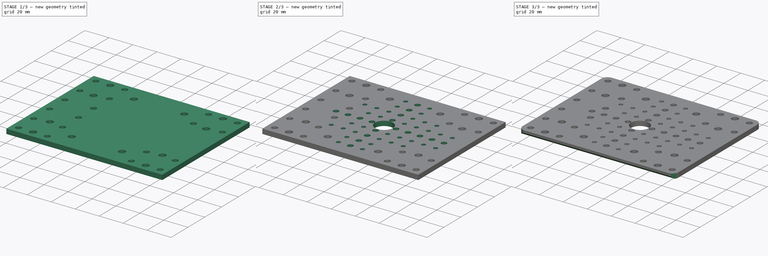
[diagram: build sequence overview — one tinted view per stage of 3, left to right]
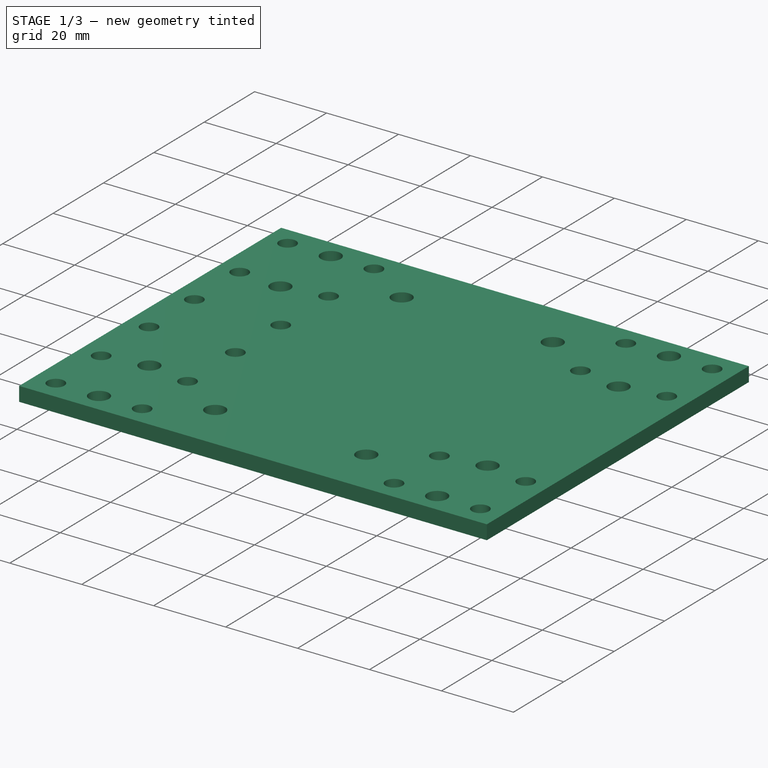
[diagram: stage 1 of 3 — iso view after this stage's code; geometry added in this stage tinted green]
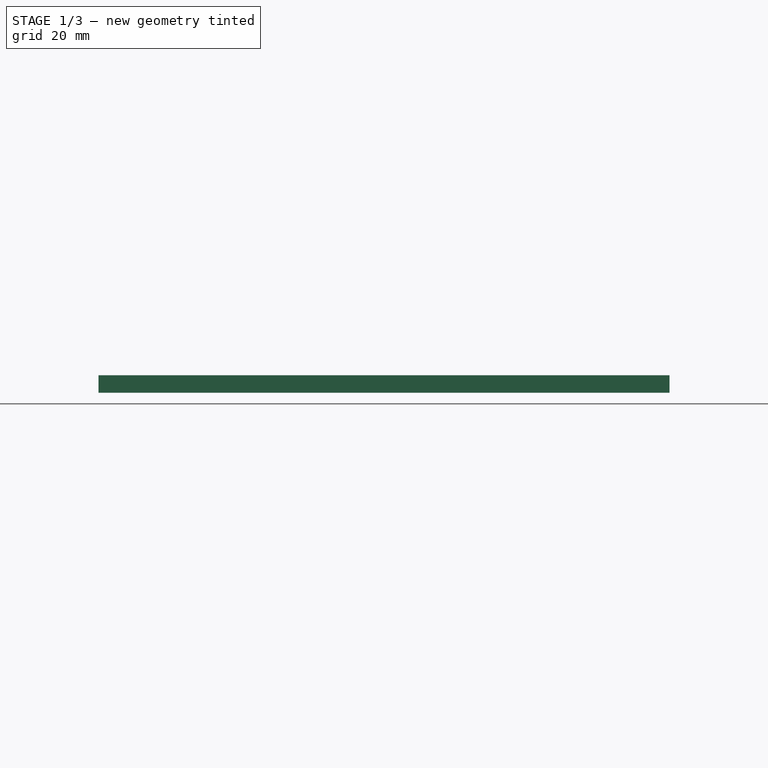
[diagram: stage 1 of 3 — front view after this stage's code; geometry added in this stage tinted green]
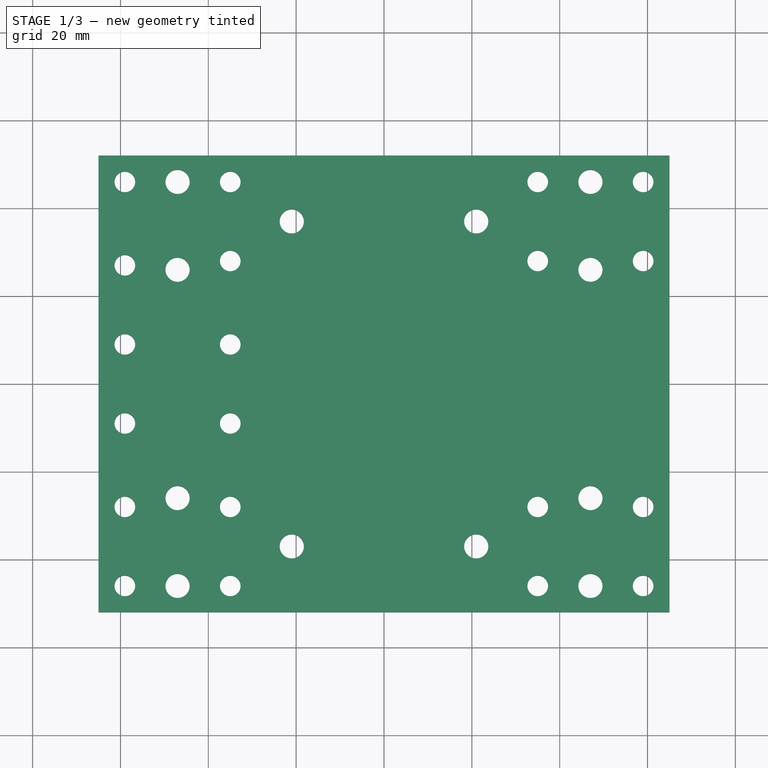
[diagram: stage 1 of 3 — top view after this stage's code; geometry added in this stage tinted green]
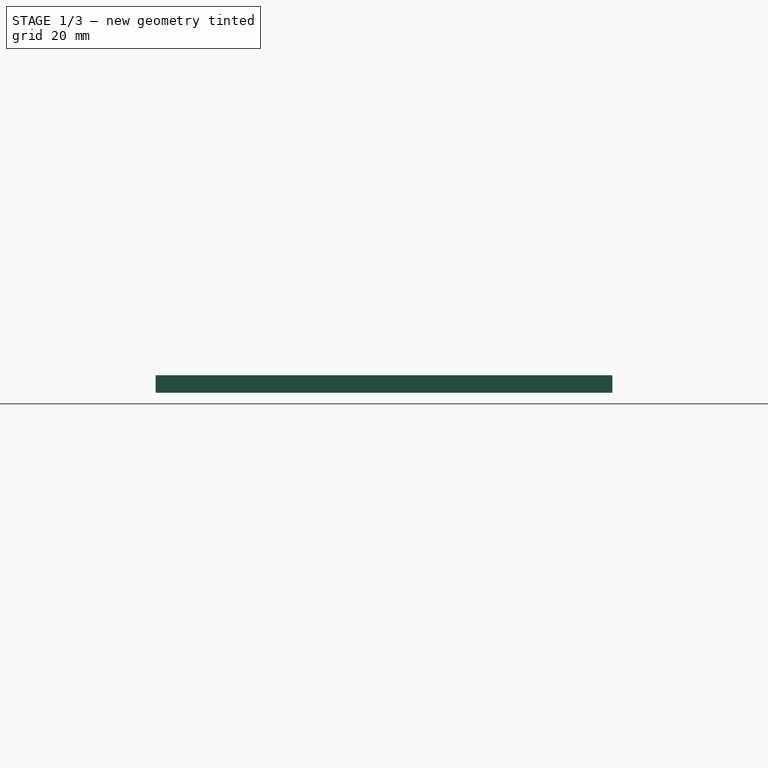
[diagram: stage 1 of 3 — right view after this stage's code; geometry added in this stage tinted green]
FCSTD DOCUMENT  (FreeCAD 0.16R6707 (Git))
Label: spindle top plate 2
License: All rights reserved
LicenseURL: http://en.wikipedia.org/wiki/All_rights_reserved
objects: Sketcher::SketchObject×3, PartDesign::Pocket×2, PartDesign::Pad×1, PartDesign::Chamfer×1, PartDesign::Fillet×1
note: 11 computed .brp shape members not serialized (recipe doc carries the construction recipe); baked Part::Feature solids carry a one-line shape summary decoded from their .brp

FEATURE [Sketcher::SketchObject] Sketch  label="overall"
  sketch-geometry (4):
    g0: LineSegment StartX=-65 StartY=52 StartZ=0 EndX=65 EndY=52 EndZ=0
    g1: LineSegment StartX=65 StartY=52 StartZ=0 EndX=65 EndY=-52 EndZ=0
    g2: LineSegment StartX=65 StartY=-52 StartZ=0 EndX=-65 EndY=-52 EndZ=0
    g3: LineSegment StartX=-65 StartY=-52 StartZ=0 EndX=-65 EndY=52 EndZ=0
  constraints (12):
    c: Coincident(g0,g1)
    c: Coincident(g1,g2)
    c: Coincident(g2,g3)
    c: Coincident(g3,g0)
    c: Horizontal(g0)
    c: Horizontal(g2)
    c: Vertical(g1)
    c: Vertical(g3)
    c: Symmetric(g0,g0,g-2)
    c: Symmetric(g0,g2,g-1)
    c: DistanceY(g3,g3) = 104
    c: DistanceX(g0,g0) = 130
FEATURE [PartDesign::Pad] Pad
  Length = 4
  Length2 = 100
  Sketch = -> Sketch
  Type = 0
FEATURE [Sketcher::SketchObject] Sketch001  label="support holes"
  Placement = pos=(0,0,4) rot=(0,0,1;0rad)
  Support = -> Pad [Face6]
  sketch-geometry (48):
    g0: LineSegment [constr] StartX=-59 StartY=46 StartZ=0 EndX=59 EndY=46 EndZ=0
    g1: LineSegment [constr] StartX=59 StartY=46 StartZ=0 EndX=59 EndY=-46 EndZ=0
    g2: LineSegment [constr] StartX=59 StartY=-46 StartZ=0 EndX=-59 EndY=-46 EndZ=0
    g3: LineSegment [constr] StartX=-59 StartY=-46 StartZ=0 EndX=-59 EndY=46 EndZ=0
    g4: LineSegment [constr] StartX=-35 StartY=28 StartZ=0 EndX=35 EndY=28 EndZ=0
    g5: LineSegment [constr] StartX=35 StartY=28 StartZ=0 EndX=35 EndY=-28 EndZ=0
    g6: LineSegment [constr] StartX=35 StartY=-28 StartZ=0 EndX=-35 EndY=-28 EndZ=0
    g7: LineSegment [constr] StartX=-35 StartY=-28 StartZ=0 EndX=-35 EndY=28 EndZ=0
    g8: Circle CenterX=-35 CenterY=46 CenterZ=0 NormalX=0 NormalY=0 NormalZ=1 Radius=2.35
    g9: Circle CenterX=-59 CenterY=27 CenterZ=0 NormalX=0 NormalY=0 NormalZ=1 Radius=2.35
    g10: Circle CenterX=-59 CenterY=46 CenterZ=0 NormalX=0 NormalY=0 NormalZ=1 Radius=2.35
    g11: Circle CenterX=35 CenterY=46 CenterZ=0 NormalX=0 NormalY=0 NormalZ=1 Radius=2.35
    g12: Circle CenterX=59 CenterY=28 CenterZ=0 NormalX=0 NormalY=0 NormalZ=1 Radius=2.35
    g13: Circle CenterX=59 CenterY=46 CenterZ=0 NormalX=0 NormalY=0 NormalZ=1 Radius=2.35
    g14: Circle CenterX=59 CenterY=-28 CenterZ=0 NormalX=0 NormalY=0 NormalZ=1 Radius=2.35
    g15: Circle CenterX=59 CenterY=-46 CenterZ=0 NormalX=0 NormalY=0 NormalZ=1 Radius=2.35
    g16: Circle CenterX=35 CenterY=-46 CenterZ=0 NormalX=0 NormalY=0 NormalZ=1 Radius=2.35
    g17: Circle CenterX=-59 CenterY=-28 CenterZ=0 NormalX=0 NormalY=0 NormalZ=1 Radius=2.35
    g18: Circle CenterX=-35 CenterY=-46 CenterZ=0 NormalX=0 NormalY=0 NormalZ=1 Radius=2.35
    g19: Circle CenterX=-59 CenterY=-46 CenterZ=0 NormalX=0 NormalY=0 NormalZ=1 Radius=2.35
    g20: LineSegment [constr] StartX=-47 StartY=63.724 StartZ=0 EndX=-47 EndY=-60.0684 EndZ=0
    g21: LineSegment [constr] StartX=47 StartY=59.8365 StartZ=0 EndX=47 EndY=-50.1635 EndZ=0
    g22: Circle CenterX=-47 CenterY=46 CenterZ=0 NormalX=0 NormalY=0 NormalZ=1 Radius=2.75
    g23: Circle CenterX=-47 CenterY=26 CenterZ=0 NormalX=0 NormalY=0 NormalZ=1 Radius=2.75
    g24: Circle CenterX=47 CenterY=46 CenterZ=0 NormalX=0 NormalY=0 NormalZ=1 Radius=2.75
    g25: Circle CenterX=47 CenterY=26 CenterZ=0 NormalX=0 NormalY=0 NormalZ=1 Radius=2.75
    g26: Circle CenterX=-21 CenterY=-37 CenterZ=0 NormalX=0 NormalY=0 NormalZ=1 Radius=2.75
    g27: Circle CenterX=21 CenterY=-37 CenterZ=0 NormalX=0 NormalY=0 NormalZ=1 Radius=2.75
    g28: LineSegment [constr] StartX=-60 StartY=37 StartZ=0 EndX=59.9989 EndY=37 EndZ=0
    g29: Circle CenterX=-21 CenterY=37 CenterZ=0 NormalX=0 NormalY=0 NormalZ=1 Radius=2.75
    g30: Circle CenterX=21 CenterY=37 CenterZ=0 NormalX=0 NormalY=0 NormalZ=1 Radius=2.75
    g31: Circle CenterX=47 CenterY=-46 CenterZ=0 NormalX=0 NormalY=0 NormalZ=1 Radius=2.75
    g32: Circle CenterX=47 CenterY=-26 CenterZ=0 NormalX=0 NormalY=0 NormalZ=1 Radius=2.75
    g33: Circle CenterX=-47 CenterY=-26 CenterZ=0 NormalX=0 NormalY=0 NormalZ=1 Radius=2.75
    g34: Circle CenterX=-47 CenterY=-46 CenterZ=0 NormalX=0 NormalY=0 NormalZ=1 Radius=2.75
    g35: LineSegment [constr] StartX=-56.1432 StartY=-37 StartZ=0 EndX=70 EndY=-37 EndZ=0
    g36: Circle CenterX=-35 CenterY=28 CenterZ=0 NormalX=0 NormalY=0 NormalZ=1 Radius=2.35
    g37: Circle CenterX=35 CenterY=28 CenterZ=0 NormalX=0 NormalY=0 NormalZ=1 Radius=2.35
    g38: Circle CenterX=35 CenterY=-28 CenterZ=0 NormalX=0 NormalY=0 NormalZ=1 Radius=2.35
    g39: Circle CenterX=-35 CenterY=-28 CenterZ=0 NormalX=0 NormalY=0 NormalZ=1 Radius=2.35
    g40: LineSegment [constr] StartX=30 StartY=56 StartZ=0 EndX=65.7035 EndY=56 EndZ=0
    g41: LineSegment [constr] StartX=30 StartY=-56 StartZ=0 EndX=64.5588 EndY=-56 EndZ=0
    g42: LineSegment [constr] StartX=-64.62 StartY=19 StartZ=0 EndX=94.658 EndY=19 EndZ=0
    g43: Circle CenterX=-59 CenterY=9 CenterZ=0 NormalX=0 NormalY=0 NormalZ=1 Radius=2.35
    g44: Circle CenterX=-59 CenterY=-9 CenterZ=0 NormalX=0 NormalY=0 NormalZ=1 Radius=2.35
    g45: Circle CenterX=-35 CenterY=9 CenterZ=0 NormalX=0 NormalY=0 NormalZ=1 Radius=2.35
    g46: Circle CenterX=-35 CenterY=-9 CenterZ=0 NormalX=0 NormalY=0 NormalZ=1 Radius=2.35
    g47: LineSegment [constr] StartX=-80 StartY=52 StartZ=0 EndX=-25.8285 EndY=52 EndZ=0
  constraints (121):
    c: Coincident(g0,g1)
    c: Coincident(g1,g2)
    c: Coincident(g2,g3)
    c: Coincident(g3,g0)
    c: Horizontal(g2)
    c: Vertical(g1)
    c: Symmetric(g0,g0,g-2)
    c: Symmetric(g0,g2,g-1)
    c: Symmetric(g4,g4,g-2)
    c: Symmetric(g5,g4,g-1)
    c: DistanceX(g4,g0) = 24
    c: Vertical(g5)
    c: Vertical(g7)
    c: Horizontal(g6)
    c: DistanceY(g4,g0) = 18
    c: Coincident(g4,g7)
    c: Coincident(g5,g6)
    c: Coincident(g6,g7)
    c: Coincident(g4,g5)
    c: Symmetric(g29,g30,g-2)
    c: Symmetric(g26,g27,g-2)
    c: DistanceX(g29,g30) = 42
    c: DistanceX(g26,g27) = 42
    c: DistanceX(g30,g4) = 14
    c: DistanceX(g21,g0) = 12
    c: Vertical(g21)
    c: DistanceX(g0,g20) = 12
    c: Vertical(g20)
    c: Coincident(g10,g0)
    c: PointOnObject(g9,g3)
    c: DistanceY(g28,g0) = 9
    c: DistanceY(g2,g35) = 9
    c: Coincident(g19,g2)
    c: Coincident(g15,g1)
    c: Coincident(g13,g0)
    c: PointOnObject(g34,g2)
    c: PointOnObject(g34,g20)
    c: PointOnObject(g22,g20)
    c: PointOnObject(g22,g0)
    c: PointOnObject(g24,g0)
    c: PointOnObject(g24,g21)
    c: PointOnObject(g31,g2)
    c: PointOnObject(g31,g21)
    c: PointOnObject(g12,g4)
    c: PointOnObject(g12,g1)
    c: PointOnObject(g17,g6)
    c: PointOnObject(g17,g3)
    c: PointOnObject(g14,g6)
    c: PointOnObject(g14,g1)
    c: PointOnObject(g11,g5)
    c: PointOnObject(g11,g0)
    c: PointOnObject(g8,g0)
    c: PointOnObject(g8,g7)
    c: PointOnObject(g18,g2)
    c: PointOnObject(g18,g7)
    c: PointOnObject(g16,g5)
    c: PointOnObject(g16,g2)
    c: PointOnObject(g33,g20)
    c: DistanceY(g34,g33) = 20
    c: PointOnObject(g32,g21)
    c: DistanceY(g31,g32) = 20
    c: PointOnObject(g25,g21)
    c: DistanceY(g25,g24) = 20
    c: PointOnObject(g23,g20)
    c: DistanceY(g23,g22) = 20
    c: Equal(g26,g29)
    c: Equal(g29,g30)
    c: Equal(g30,g27)
    c: Radius(g29) = 2.75
    c: Coincident(g36,g4)
    c: Coincident(g37,g4)
    c: Coincident(g38,g5)
    c: Coincident(g39,g6)
    c: Equal(g10,g8)
    c: Equal(g8,g36)
    c: Equal(g36,g9)
    c: Equal(g9,g17)
    c: Equal(g17,g39)
    c: Equal(g39,g18)
    c: Equal(g18,g19)
    c: Equal(g19,g11)
    c: Equal(g11,g13)
    c: Equal(g13,g37)
    c: Equal(g37,g12)
    c: Equal(g12,g14)
    c: Equal(g14,g38)
    c: Equal(g38,g16)
    c: Equal(g16,g15)
    c: Radius(g36) = 2.35
    c: Equal(g22,g23)
    c: Equal(g23,g33)
    c: Equal(g33,g34)
    c: Equal(g34,g24)
    c: Equal(g24,g25)
    c: Equal(g25,g32)
    c: Equal(g32,g31)
    c: Radius(g23) = 2.75
    c: Horizontal(g40)
    c: Horizontal(g41)
    c: DistanceY(g41,g31) = 10
    c: Horizontal(g28)
    c: Horizontal(g35)
    c: DistanceY(g24,g40) = 10
    c: PointOnObject(g29,g28)
    c: PointOnObject(g26,g35)
    c: DistanceY(g-1,g12) = 28
    c: Horizontal(g42)
    c: DistanceY(g41,g42) = 75
    c: Equal(g43,g45)
    c: Equal(g45,g46)
    c: Equal(g46,g44)
    c: Radius(g43) = 2.35
    c: PointOnObject(g43,g3)
    c: PointOnObject(g44,g3)
    c: PointOnObject(g46,g7)
    c: Symmetric(g43,g44,g-1)
    c: DistanceY(g44,g43) = 18
    c: Symmetric(g46,g45,g-1)
    c: DistanceY(g46,g45) = 18
    c: Horizontal(g47)
    c: DistanceY(g8,g47) = 6
FEATURE [PartDesign::Pocket] Pocket
  Length = 5
  Sketch = -> Sketch001
  Type = 1
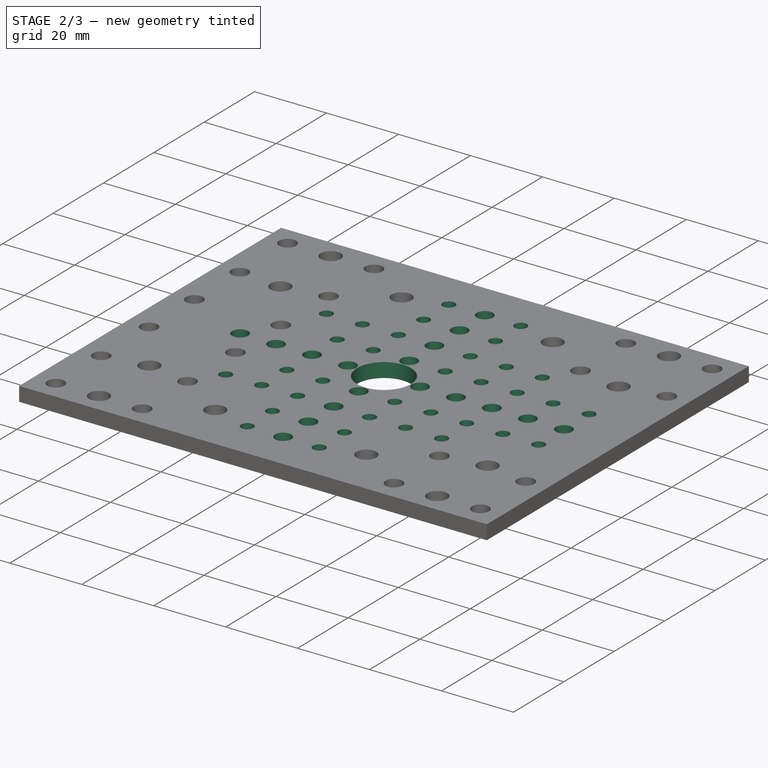
[diagram: stage 2 of 3 — iso view after this stage's code; geometry added in this stage tinted green]
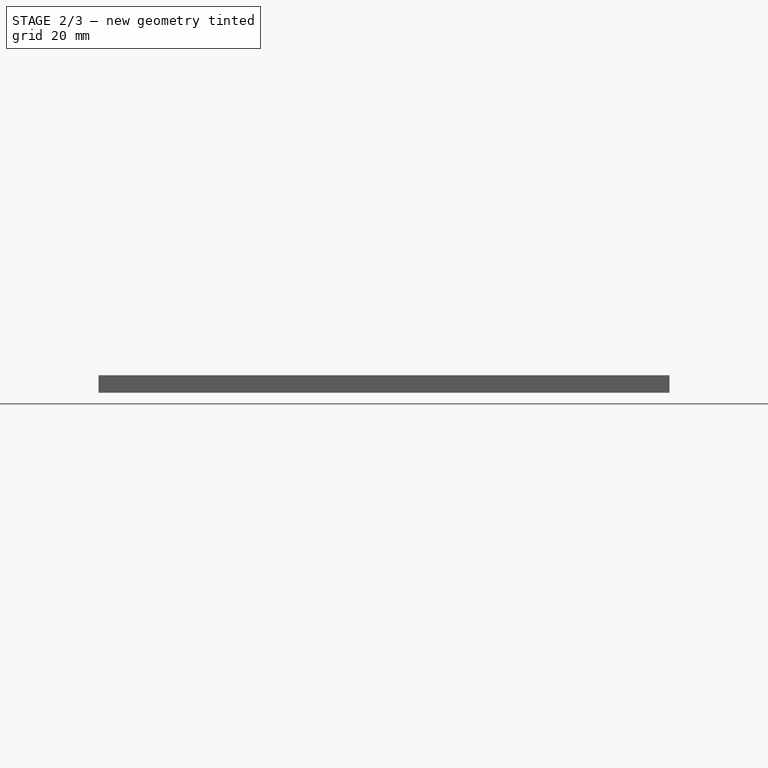
[diagram: stage 2 of 3 — front view after this stage's code; geometry added in this stage tinted green]
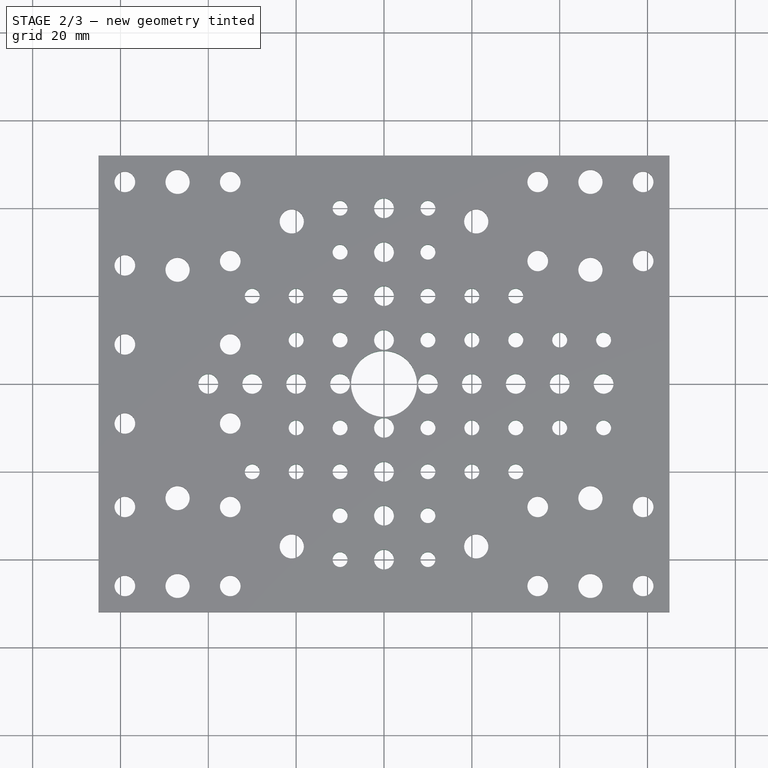
[diagram: stage 2 of 3 — top view after this stage's code; geometry added in this stage tinted green]
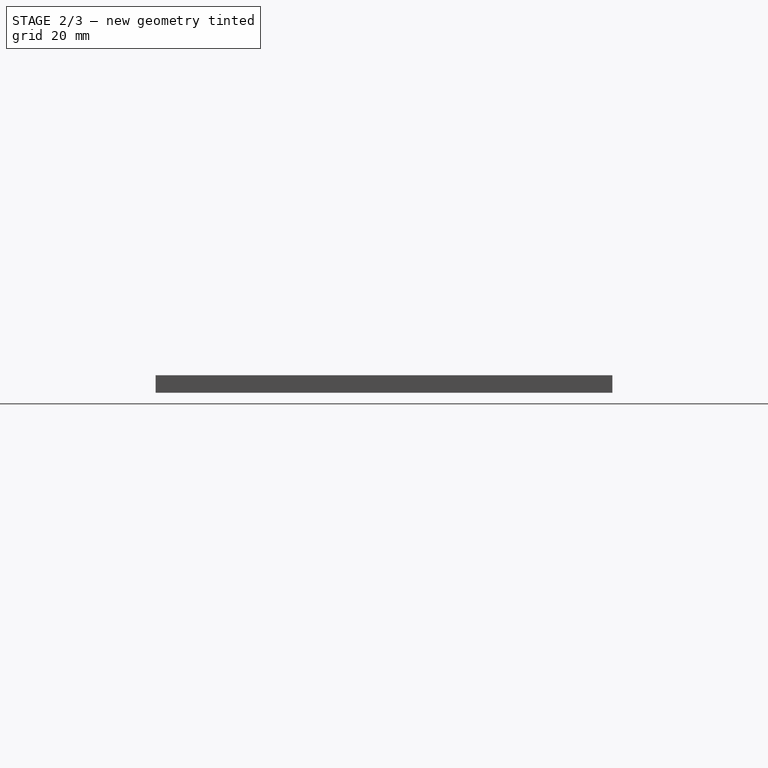
[diagram: stage 2 of 3 — right view after this stage's code; geometry added in this stage tinted green]
FEATURE [Sketcher::SketchObject] Sketch002  label="fill holes"
  Placement = pos=(0,0,4) rot=(0,0,1;0rad)
  Support = -> Pocket [Face5]
  sketch-geometry (52):
    g0: Circle CenterX=-10 CenterY=10 CenterZ=0 NormalX=0 NormalY=0 NormalZ=1 Radius=1.7
    g1: Circle CenterX=-20 CenterY=10 CenterZ=0 NormalX=0 NormalY=0 NormalZ=1 Radius=1.7
    g2: Circle CenterX=-10 CenterY=0 CenterZ=0 NormalX=0 NormalY=0 NormalZ=1 Radius=2.25
    g3: Circle CenterX=-20 CenterY=0 CenterZ=0 NormalX=0 NormalY=0 NormalZ=1 Radius=2.25
    g4: Circle CenterX=-10 CenterY=-10 CenterZ=0 NormalX=0 NormalY=0 NormalZ=1 Radius=1.7
    g5: Circle CenterX=-20 CenterY=-10 CenterZ=0 NormalX=0 NormalY=0 NormalZ=1 Radius=1.7
    g6: Circle CenterX=-30 CenterY=0 CenterZ=0 NormalX=0 NormalY=0 NormalZ=1 Radius=2.25
    g7: Circle CenterX=-40 CenterY=0 CenterZ=0 NormalX=0 NormalY=0 NormalZ=1 Radius=2.25
    g8: Circle CenterX=10 CenterY=10 CenterZ=0 NormalX=0 NormalY=0 NormalZ=1 Radius=1.7
    g9: Circle CenterX=10 CenterY=-10 CenterZ=0 NormalX=0 NormalY=0 NormalZ=1 Radius=1.7
    g10: Circle CenterX=20 CenterY=-10 CenterZ=0 NormalX=0 NormalY=0 NormalZ=1 Radius=1.7
    g11: Circle CenterX=20 CenterY=10 CenterZ=0 NormalX=0 NormalY=0 NormalZ=1 Radius=1.7
    g12: Circle CenterX=30 CenterY=10 CenterZ=0 NormalX=0 NormalY=0 NormalZ=1 Radius=1.7
    g13: Circle CenterX=40 CenterY=10 CenterZ=0 NormalX=0 NormalY=0 NormalZ=1 Radius=1.7
    g14: Circle CenterX=30 CenterY=-10 CenterZ=0 NormalX=0 NormalY=0 NormalZ=1 Radius=1.7
    g15: Circle CenterX=40 CenterY=-10 CenterZ=0 NormalX=0 NormalY=0 NormalZ=1 Radius=1.7
    g16: Circle CenterX=-10 CenterY=20 CenterZ=0 NormalX=0 NormalY=0 NormalZ=1 Radius=1.7
    g17: Circle CenterX=-20 CenterY=20 CenterZ=0 NormalX=0 NormalY=0 NormalZ=1 Radius=1.7
    g18: Circle CenterX=10 CenterY=20 CenterZ=0 NormalX=0 NormalY=0 NormalZ=1 Radius=1.7
    g19: Circle CenterX=20 CenterY=20 CenterZ=0 NormalX=0 NormalY=0 NormalZ=1 Radius=1.7
    g20: Circle CenterX=20 CenterY=-20 CenterZ=0 NormalX=0 NormalY=0 NormalZ=1 Radius=1.7
    g21: Circle CenterX=10 CenterY=-20 CenterZ=0 NormalX=0 NormalY=0 NormalZ=1 Radius=1.7
    g22: Circle CenterX=-10 CenterY=-20 CenterZ=0 NormalX=0 NormalY=0 NormalZ=1 Radius=1.7
    g23: Circle CenterX=-20 CenterY=-20 CenterZ=0 NormalX=0 NormalY=0 NormalZ=1 Radius=1.7
    g24: Circle CenterX=-10 CenterY=30 CenterZ=0 NormalX=0 NormalY=0 NormalZ=1 Radius=1.7
    g25: Circle CenterX=-10 CenterY=40 CenterZ=0 NormalX=0 NormalY=0 NormalZ=1 Radius=1.7
    g26: Circle CenterX=10 CenterY=40 CenterZ=0 NormalX=0 NormalY=0 NormalZ=1 Radius=1.7
    g27: Circle CenterX=10 CenterY=30 CenterZ=0 NormalX=0 NormalY=0 NormalZ=1 Radius=1.7
    g28: Circle CenterX=10 CenterY=-30 CenterZ=0 NormalX=0 NormalY=0 NormalZ=1 Radius=1.7
    g29: Circle CenterX=-10 CenterY=-30 CenterZ=0 NormalX=0 NormalY=0 NormalZ=1 Radius=1.7
    g30: Circle CenterX=-10 CenterY=-40 CenterZ=0 NormalX=0 NormalY=0 NormalZ=1 Radius=1.7
    g31: Circle CenterX=10 CenterY=-40 CenterZ=0 NormalX=0 NormalY=0 NormalZ=1 Radius=1.7
    g32: Circle CenterX=0 CenterY=40 CenterZ=0 NormalX=0 NormalY=0 NormalZ=1 Radius=2.25
    g33: Circle CenterX=0 CenterY=30 CenterZ=0 NormalX=0 NormalY=0 NormalZ=1 Radius=2.25
    g34: Circle CenterX=0 CenterY=20 CenterZ=0 NormalX=0 NormalY=0 NormalZ=1 Radius=2.25
    g35: Circle CenterX=0 CenterY=10 CenterZ=0 NormalX=0 NormalY=0 NormalZ=1 Radius=2.25
    g36: Circle CenterX=0 CenterY=-10 CenterZ=0 NormalX=0 NormalY=0 NormalZ=1 Radius=2.25
    g37: Circle CenterX=0 CenterY=-20 CenterZ=0 NormalX=0 NormalY=0 NormalZ=1 Radius=2.25
    g38: Circle CenterX=0 CenterY=-30 CenterZ=0 NormalX=0 NormalY=0 NormalZ=1 Radius=2.25
    g39: Circle CenterX=0 CenterY=-40 CenterZ=0 NormalX=0 NormalY=0 NormalZ=1 Radius=2.25
    g40: Circle CenterX=10 CenterY=0 CenterZ=0 NormalX=0 NormalY=0 NormalZ=1 Radius=2.25
    g41: Circle CenterX=20 CenterY=0 CenterZ=0 NormalX=0 NormalY=0 NormalZ=1 Radius=2.25
    g42: Circle CenterX=30 CenterY=0 CenterZ=0 NormalX=0 NormalY=0 NormalZ=1 Radius=2.25
    g43: Circle CenterX=40 CenterY=0 CenterZ=0 NormalX=0 NormalY=0 NormalZ=1 Radius=2.25
    g44: Circle CenterX=50 CenterY=0 CenterZ=0 NormalX=0 NormalY=0 NormalZ=1 Radius=2.25
    g45: Circle CenterX=50 CenterY=10 CenterZ=0 NormalX=0 NormalY=0 NormalZ=1 Radius=1.7
    g46: Circle CenterX=50 CenterY=-10 CenterZ=0 NormalX=0 NormalY=0 NormalZ=1 Radius=1.7
    g47: Circle CenterX=-30 CenterY=20 CenterZ=0 NormalX=0 NormalY=0 NormalZ=1 Radius=1.7
    g48: Circle CenterX=-30 CenterY=-20 CenterZ=0 NormalX=0 NormalY=0 NormalZ=1 Radius=1.7
    g49: Circle CenterX=30 CenterY=20 CenterZ=0 NormalX=0 NormalY=0 NormalZ=1 Radius=1.7
    g50: Circle CenterX=30 CenterY=-20 CenterZ=0 NormalX=0 NormalY=0 NormalZ=1 Radius=1.7
    g51: Circle CenterX=0 CenterY=0 CenterZ=0 NormalX=0 NormalY=0 NormalZ=1 Radius=7.5
  constraints (52):
    c: Equal(g32,g33)
    c: Equal(g33,g34)
    c: Equal(g34,g35)
    c: Equal(g36,g37)
    c: Equal(g37,g38)
    c: Equal(g38,g39)
    c: Equal(g39,g7)
    c: Equal(g7,g6)
    c: Equal(g6,g3)
    c: Equal(g3,g2)
    c: Equal(g2,g40)
    c: Equal(g40,g41)
    c: Equal(g41,g42)
    c: Equal(g42,g43)
    c: Equal(g43,g44)
    c: Radius(g32) = 2.25
    c: Equal(g26,g27)
    c: Equal(g27,g18)
    c: Equal(g18,g8)
    c: Equal(g8,g19)
    c: Equal(g19,g11)
    c: Equal(g11,g49)
    c: Equal(g49,g12)
    c: Equal(g12,g13)
    c: Equal(g13,g45)
    c: Equal(g45,g46)
    c: Equal(g46,g15)
    c: Equal(g15,g14)
    c: Equal(g14,g10)
    c: Equal(g10,g9)
    c: Equal(g9,g21)
    c: Equal(g21,g20)
    c: Equal(g20,g50)
    c: Equal(g50,g28)
    c: Equal(g28,g31)
    c: Equal(g31,g30)
    c: Equal(g30,g29)
    c: Equal(g29,g22)
    c: Equal(g22,g23)
    c: Equal(g23,g5)
    c: Equal(g5,g4)
    c: Equal(g4,g25)
    c: Equal(g25,g24)
    c: Equal(g24,g16)
    c: Equal(g16,g0)
    c: Equal(g0,g1)
    c: Equal(g1,g17)
    c: Equal(g17,g47)
    c: Equal(g47,g48)
    c: Radius(g25) = 1.7
    c: Coincident(g51,g-1)
    c: Radius(g51) = 7.5
FEATURE [PartDesign::Pocket] Pocket001
  Length = 5
  Sketch = -> Sketch002
  Type = 0
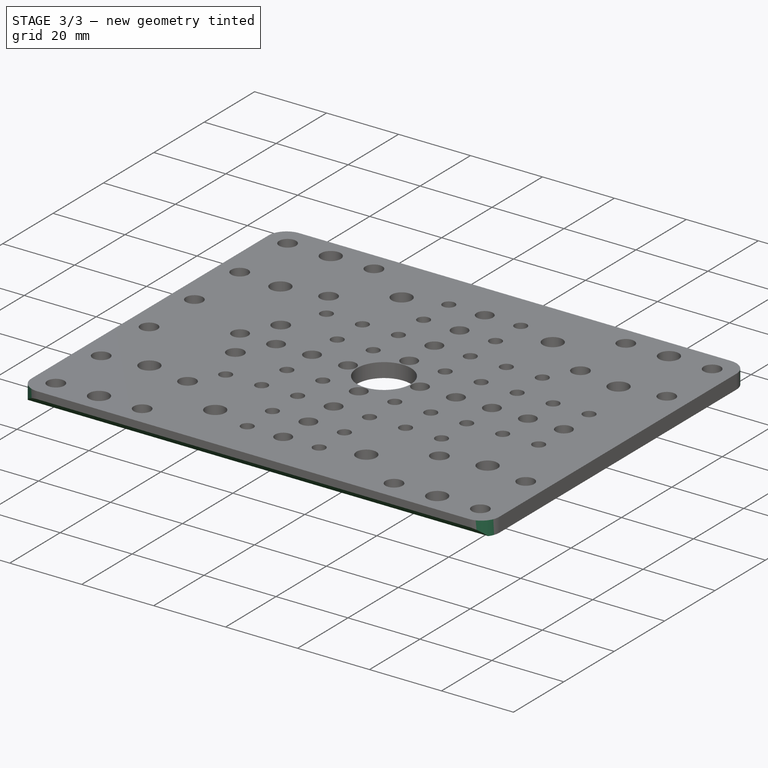
[diagram: stage 3 of 3 — iso view after this stage's code; geometry added in this stage tinted green]
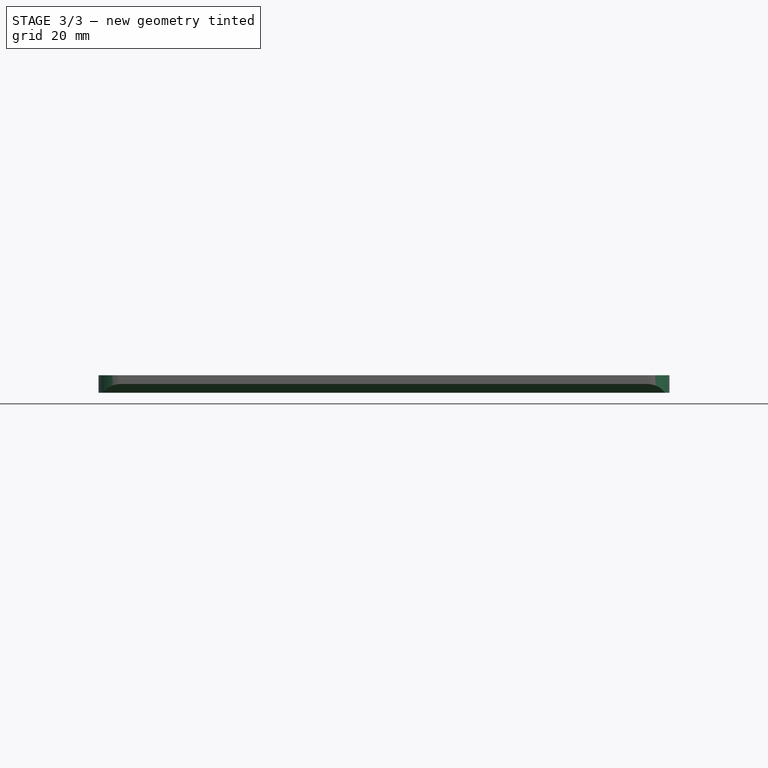
[diagram: stage 3 of 3 — front view after this stage's code; geometry added in this stage tinted green]
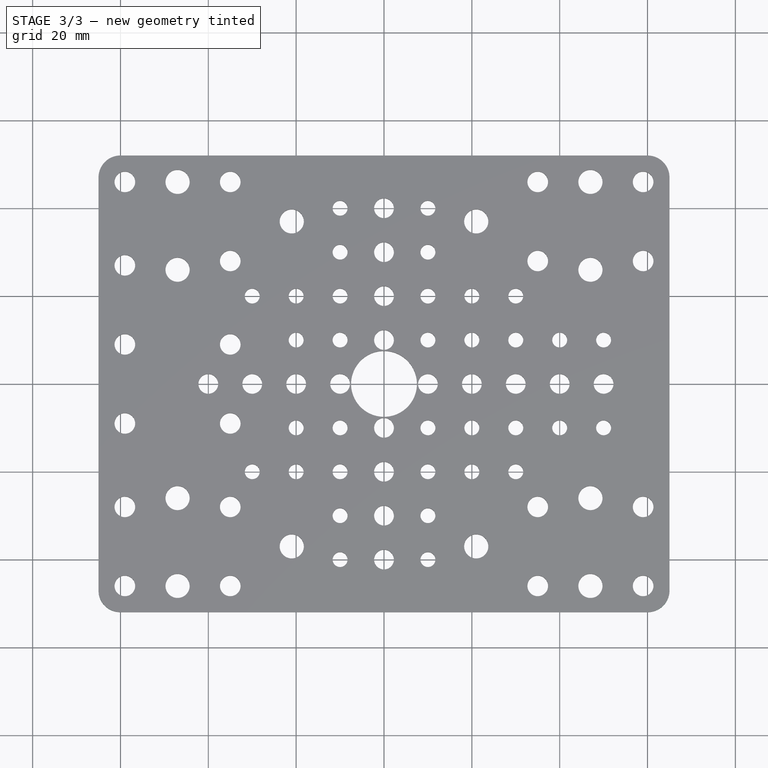
[diagram: stage 3 of 3 — top view after this stage's code; geometry added in this stage tinted green]
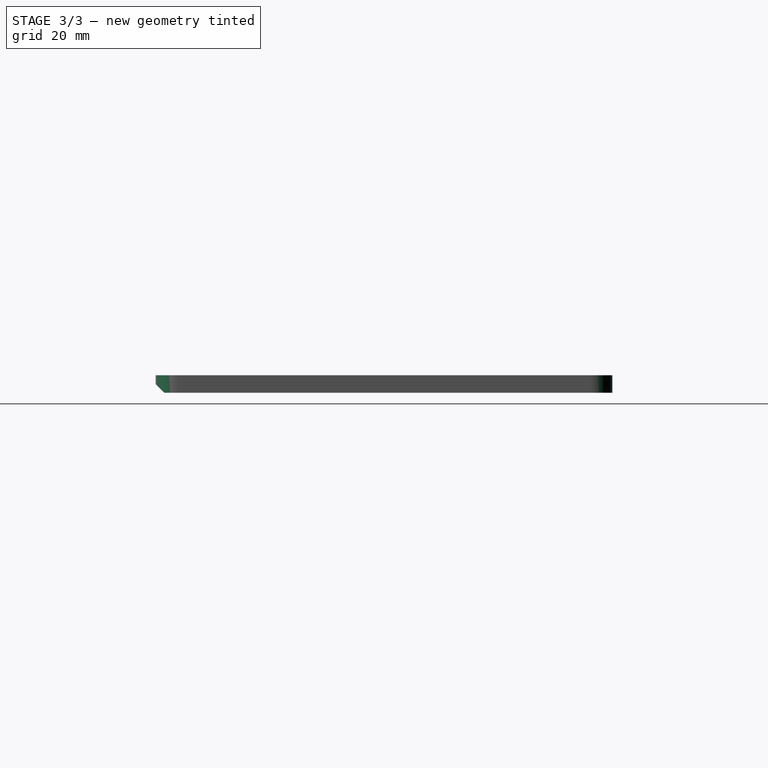
[diagram: stage 3 of 3 — right view after this stage's code; geometry added in this stage tinted green]
FEATURE [PartDesign::Chamfer] Chamfer
  Base = -> Pocket001 [Edge11]
  Size = 2
FEATURE [PartDesign::Fillet] Fillet
  Base = -> Chamfer [Edge5,Edge1,Edge6,Edge183]
  Radius = 5
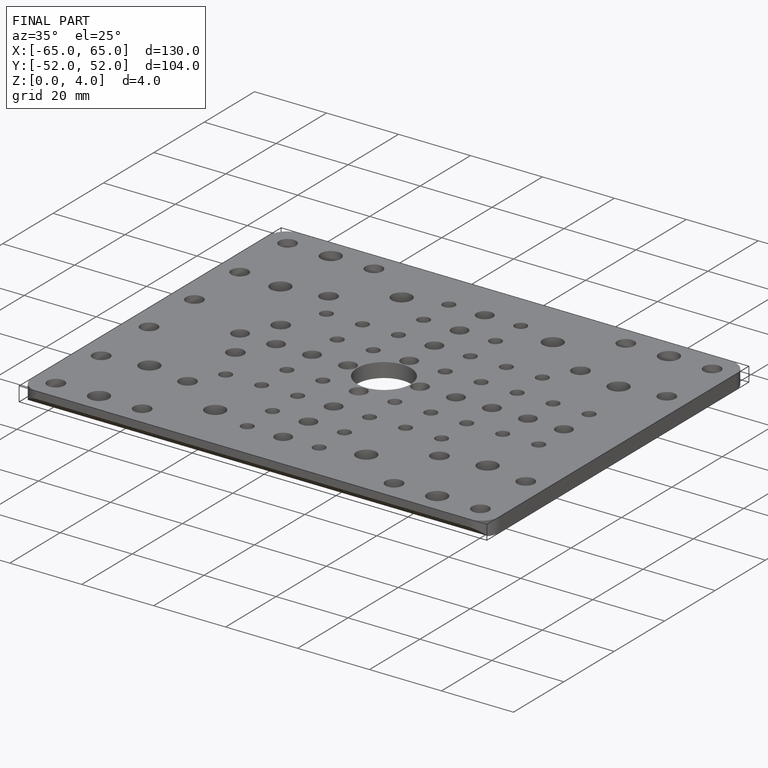
[diagram: finished part — iso view with bounding-box wireframe]
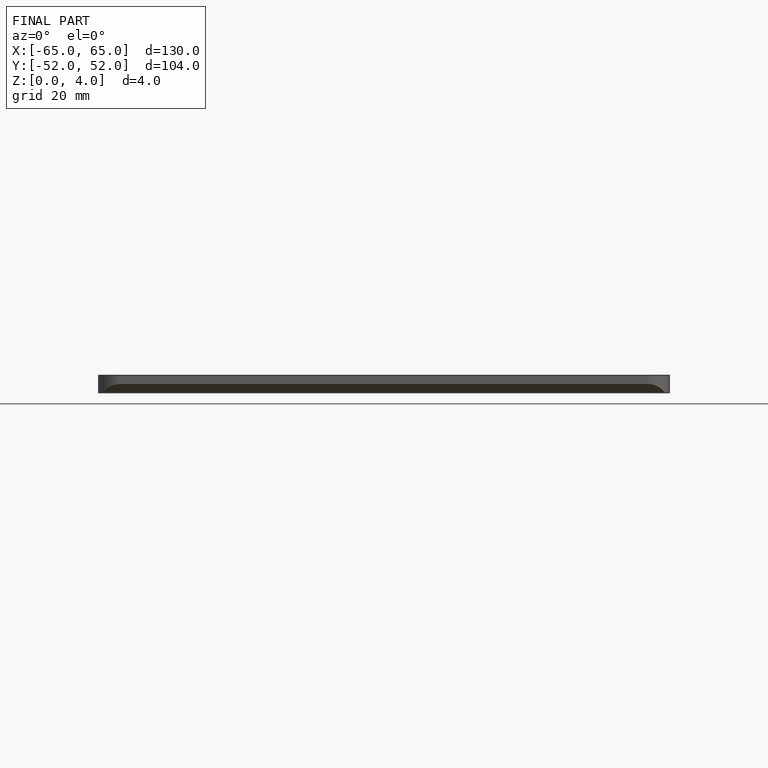
[diagram: finished part — front view with bounding-box wireframe]
